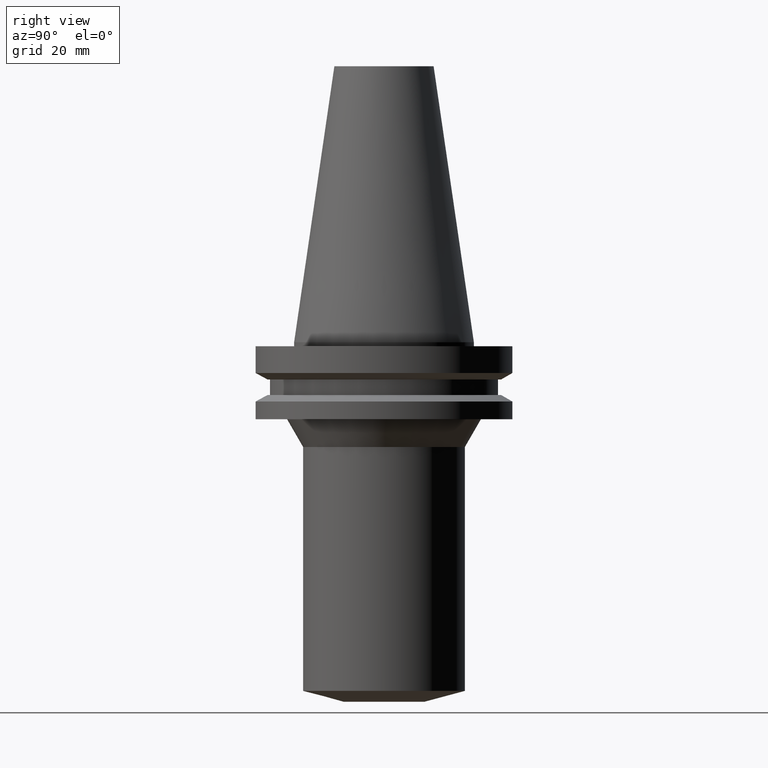
[diagram: clean part render]
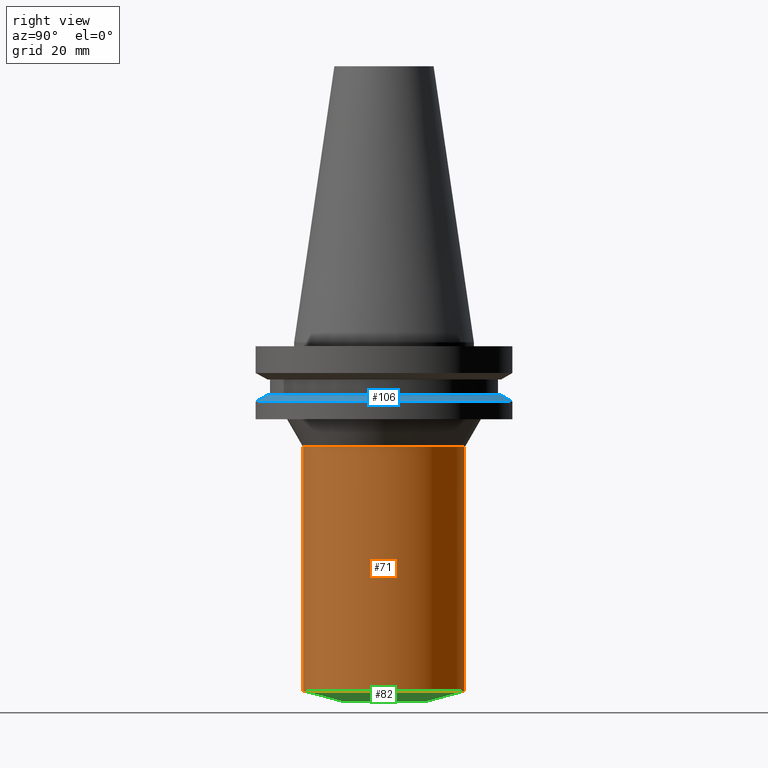
[diagram: same view with three faces highlighted in distinct colors, each labeled with its STEP entity id]
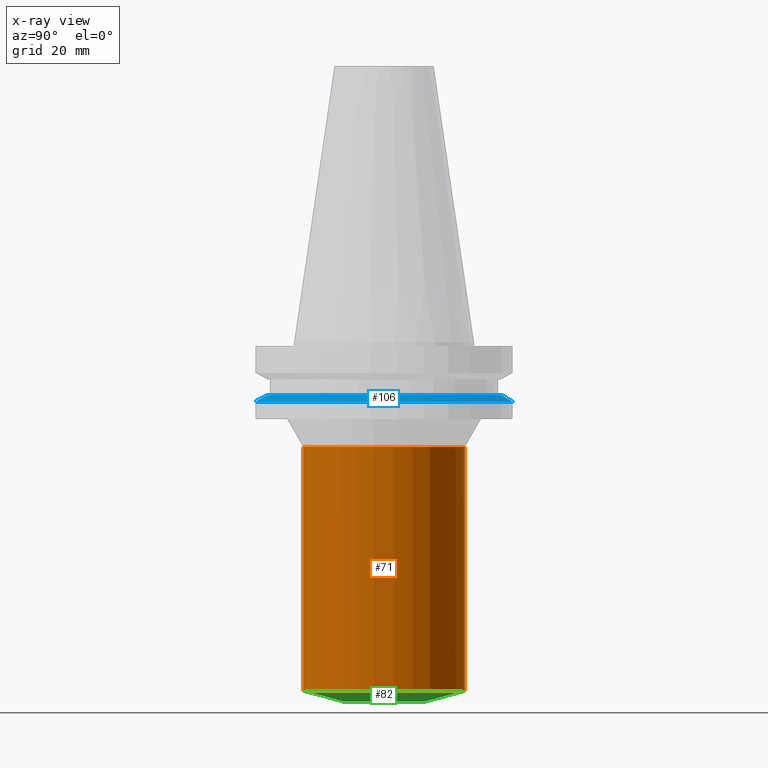
[diagram: x-ray of the same camera — body ghosted, the three highlighted faces saturated]
A machine part, right view with three faces highlighted in distinct colors.
The next image is the same camera in x-ray (body ghosted, the three faces saturated) — at least one of them is partly hidden behind the body in this view.
Their STEP definitions:

[orange] entity #71 — the highlighted cylindrical surface (bore or boss wall) has radius 20 mm, axis along (0, 0, -1).
#71=ADVANCED_FACE('Unnamed[1]',(#176,#177),#178,.T.);
#110=EDGE_CURVE('Unnamed[1]',#237,#237,#238,.T.);
#114=EDGE_CURVE('Unnamed[1]',#243,#243,#244,.T.);
#176=FACE_BOUND('',#314,.T.);
#177=FACE_BOUND('',#315,.T.);
#178=CYLINDRICAL_SURFACE('',#316,19.9999999999957);
#237=VERTEX_POINT('',#390);
#238=CIRCLE('',#391,19.999999999995);
#243=VERTEX_POINT('',#398);
#244=CIRCLE('',#399,19.9999999999965);
#314=EDGE_LOOP('',(#469));
#315=EDGE_LOOP('',(#470));
#316=AXIS2_PLACEMENT_3D('',#471,#472,#473);
#390=CARTESIAN_POINT('',(1.58591760489576E-015,19.999999999995,-25.899999999999));
#391=AXIS2_PLACEMENT_3D('',#535,#536,#537);
#398=CARTESIAN_POINT('',(5.27948346178746E-015,19.9999999999965,-86.2205080756876));
#399=AXIS2_PLACEMENT_3D('',#541,#542,#543);
#469=ORIENTED_EDGE('',*,*,#114,.F.);
#470=ORIENTED_EDGE('',*,*,#110,.T.);
#471=CARTESIAN_POINT('',(3.43270053334161E-015,6.86540106668322E-015,-56.0602540378433));
#472=DIRECTION('',(6.12323399573677E-017,1.22464679914735E-016,-1.0));
#473=DIRECTION('',(-1.23259516440783E-032,1.0,1.22464679914735E-016));
#535=CARTESIAN_POINT('',(1.58591760489576E-015,3.17183520979152E-015,-25.899999999999));
#536=DIRECTION('',(6.12323399573677E-017,1.22464679914735E-016,-1.0));
#537=DIRECTION('',(-1.23259516440783E-032,1.0,1.22464679914735E-016));
#541=CARTESIAN_POINT('',(5.27948346178746E-015,1.05589669235749E-014,-86.2205080756876));
#542=DIRECTION('',(6.12323399573677E-017,1.22464679914735E-016,-1.0));
#543=DIRECTION('',(-1.23259516440783E-032,1.0,1.22464679914735E-016));

[blue] entity #106 — the highlighted conical surface has half-angle 60 deg.
#87=EDGE_CURVE('Unnamed[1]',#203,#203,#204,.T.);
#101=EDGE_CURVE('Unnamed[1]',#223,#223,#224,.T.);
#106=ADVANCED_FACE('Unnamed[1]',(#230,#231),#232,.T.);
#203=VERTEX_POINT('',#347);
#204=CIRCLE('',#348,28.95591319);
#223=VERTEX_POINT('',#372);
#224=CIRCLE('',#373,31.75);
#230=FACE_BOUND('',#381,.T.);
#231=FACE_BOUND('',#382,.T.);
#232=CONICAL_SURFACE('',#383,30.352956595,1.04719755170464);
#347=CARTESIAN_POINT('',(7.98469713044073E-016,28.95591319,-13.04));
#348=AXIS2_PLACEMENT_3D('',#501,#502,#503);
#372=CARTESIAN_POINT('',(8.97247689112643E-016,31.75,-14.65316677));
#373=AXIS2_PLACEMENT_3D('',#520,#521,#522);
#381=EDGE_LOOP('',(#527));
#382=EDGE_LOOP('',(#528));
#383=AXIS2_PLACEMENT_3D('',#529,#530,#531);
#501=CARTESIAN_POINT('',(7.98469713044074E-016,1.59693942608815E-015,-13.04));
#502=DIRECTION('',(6.12323399573677E-017,1.22464679914735E-016,-1.0));
#503=DIRECTION('',(-1.23259516440783E-032,1.0,1.22464679914735E-016));
#520=CARTESIAN_POINT('',(8.97247689112643E-016,1.79449537822529E-015,-14.65316677));
#521=DIRECTION('',(6.12323399573677E-017,1.22464679914735E-016,-1.0));
#522=DIRECTION('',(-1.23259516440783E-032,1.0,1.22464679914735E-016));
#527=ORIENTED_EDGE('',*,*,#101,.F.);
#528=ORIENTED_EDGE('',*,*,#87,.T.);
#529=CARTESIAN_POINT('',(8.47858701078359E-016,1.69571740215672E-015,-13.846583385));
#530=DIRECTION('',(6.12323399573677E-017,1.22464679914735E-016,-1.0));
#531=DIRECTION('',(-1.23259516440783E-032,1.0,1.22464679914735E-016));

[green] entity #82 — the highlighted conical surface has half-angle 75 deg.
#73=EDGE_CURVE('Unnamed[1]',#180,#180,#181,.T.);
#82=ADVANCED_FACE('Unnamed[1]',(#194,#195),#196,.T.);
#114=EDGE_CURVE('Unnamed[1]',#243,#243,#244,.T.);
#180=VERTEX_POINT('',#319);
#181=CIRCLE('',#320,9.99999999999634);
#194=FACE_BOUND('',#336,.T.);
#195=FACE_BOUND('',#337,.T.);
#196=CONICAL_SURFACE('',#338,14.9999999999964,1.30899693899575);
#243=VERTEX_POINT('',#398);
#244=CIRCLE('',#399,19.9999999999965);
#319=CARTESIAN_POINT('',(5.44355502220991E-015,9.99999999999635,-88.8999999999988));
#320=AXIS2_PLACEMENT_3D('',#474,#475,#476);
#336=EDGE_LOOP('',(#490));
#337=EDGE_LOOP('',(#491));
#338=AXIS2_PLACEMENT_3D('',#492,#493,#494);
#398=CARTESIAN_POINT('',(5.27948346178746E-015,19.9999999999965,-86.2205080756876));
#399=AXIS2_PLACEMENT_3D('',#541,#542,#543);
#474=CARTESIAN_POINT('',(5.44355502220991E-015,1.08871100444198E-014,-88.8999999999988));
#475=DIRECTION('',(6.12323399573677E-017,1.22464679914735E-016,-1.0));
#476=DIRECTION('',(-1.23259516440783E-032,1.0,1.22464679914735E-016));
#490=ORIENTED_EDGE('',*,*,#73,.F.);
#491=ORIENTED_EDGE('',*,*,#114,.T.);
#492=CARTESIAN_POINT('',(5.36151924199869E-015,1.07230384839974E-014,-87.5602540378432));
#493=DIRECTION('',(-6.12323399573677E-017,-1.22464679914735E-016,1.0));
#494=DIRECTION('',(-1.23259516440783E-032,1.0,1.22464679914735E-016));
#541=CARTESIAN_POINT('',(5.27948346178746E-015,1.05589669235749E-014,-86.2205080756876));
#542=DIRECTION('',(6.12323399573677E-017,1.22464679914735E-016,-1.0));
#543=DIRECTION('',(-1.23259516440783E-032,1.0,1.22464679914735E-016));